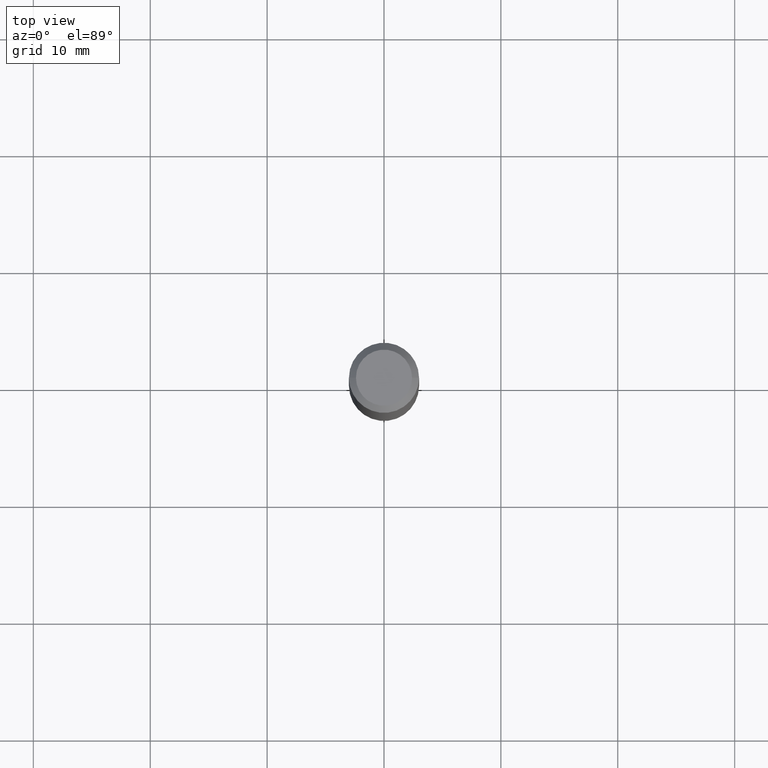
[diagram: clean part render]
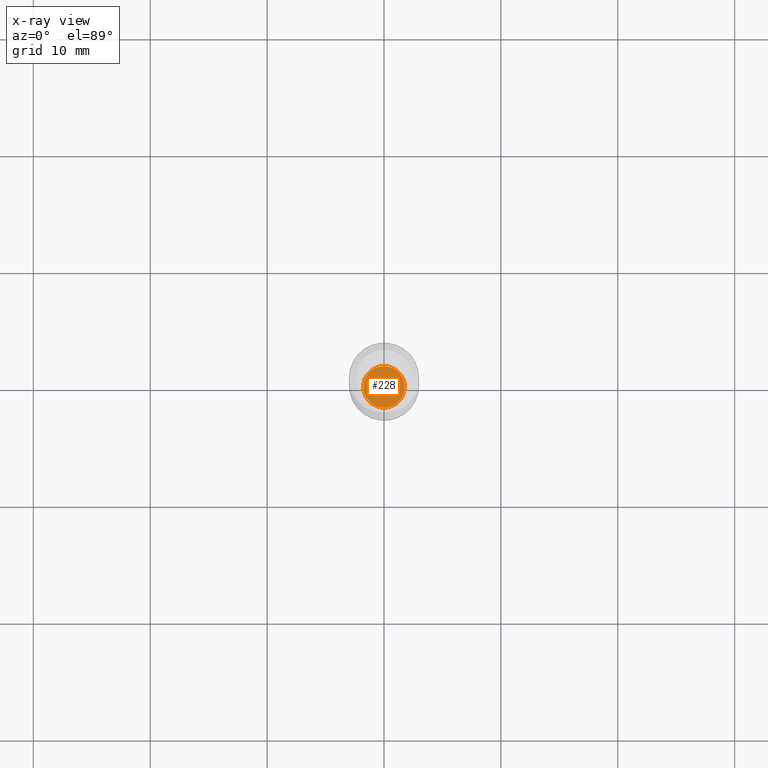
[diagram: x-ray — body ghosted, one internal face saturated and labeled with its STEP entity id]
A machine part, top view, then the same camera in x-ray: the body is ghosted and one INTERNAL B-rep face — a face not visible from any outside direction — is saturated and labeled: STEP entity #228.
In plain terms, the highlighted planar face has unit normal (-0, 0, 1).
Its self-contained STEP definition (entity closure, byte-faithful):
#55 = ORIENTED_EDGE ( 'NONE', *, *, #379, .F. ) ;
#76 = AXIS2_PLACEMENT_3D ( 'NONE', #168, #366, #399 ) ;
#115 = CIRCLE ( 'NONE', #421, 0.06980000000000000093 ) ;
#145 = CIRCLE ( 'NONE', #76, 0.06980000000000000093 ) ;
#167 = AXIS2_PLACEMENT_3D ( 'NONE', #431, #193, #425 ) ;
#168 = CARTESIAN_POINT ( 'NONE',  ( 4.387415585176754180E-29, -6.264066670018488385E-15, -1.794100000000000028 ) ) ;
#193 = DIRECTION ( 'NONE',  ( -2.438088387897960049E-29, 3.491481338843145188E-15, 1.000000000000000000 ) ) ;
#200 = CARTESIAN_POINT ( 'NONE',  ( 0.06980000000000000093, -6.751477464920990326E-15, -1.794100000000000028 ) ) ;
#228 = ADVANCED_FACE ( 'NONE', ( #464 ), #318, .F. ) ;
#257 = EDGE_CURVE ( 'NONE', #324, #474, #115, .T. ) ;
#280 = EDGE_LOOP ( 'NONE', ( #370, #55 ) ) ;
#318 = PLANE ( 'NONE',  #167 ) ;
#324 = VERTEX_POINT ( 'NONE', #200 ) ;
#358 = DIRECTION ( 'NONE',  ( -2.445468806185136597E-29, 3.491481338843145583E-15, 1.000000000000000000 ) ) ;
#366 = DIRECTION ( 'NONE',  ( -2.445468806185136597E-29, 3.491481338843145583E-15, 1.000000000000000000 ) ) ;
#370 = ORIENTED_EDGE ( 'NONE', *, *, #257, .F. ) ;
#379 = EDGE_CURVE ( 'NONE', #474, #324, #145, .T. ) ;
#385 = DIRECTION ( 'NONE',  ( 1.000000000000000000, -6.982962677686271444E-15, 0.000000000000000000 ) ) ;
#392 = CARTESIAN_POINT ( 'NONE',  ( 4.387415585176754180E-29, -6.264066670018488385E-15, -1.794100000000000028 ) ) ;
#399 = DIRECTION ( 'NONE',  ( 1.000000000000000000, -6.982962677686271444E-15, 0.000000000000000000 ) ) ;
#421 = AXIS2_PLACEMENT_3D ( 'NONE', #392, #358, #385 ) ;
#425 = DIRECTION ( 'NONE',  ( 1.000000000000000000, -6.982962677686265922E-15, 4.876176775795935793E-29 ) ) ;
#431 = CARTESIAN_POINT ( 'NONE',  ( 4.387415585176754180E-29, -6.264066670018488385E-15, -1.794100000000000028 ) ) ;
#464 = FACE_OUTER_BOUND ( 'NONE', #280, .T. ) ;
#470 = CARTESIAN_POINT ( 'NONE',  ( -0.06980000000000000093, -5.765458613283827445E-15, -1.794100000000000028 ) ) ;
#474 = VERTEX_POINT ( 'NONE', #470 ) ;